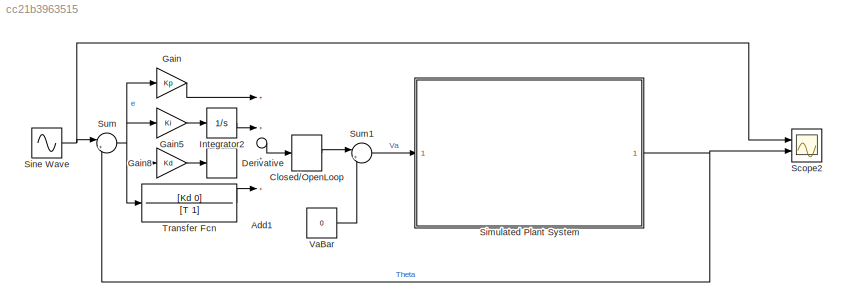
MODEL slx_cc21b3963515
KIND model
CONFIG AbsTol = auto
CONFIG EnableMultiTasking = off
CONFIG FixedStep = 1e-4
CONFIG MaxStep = auto
CONFIG MinStep = auto
CONFIG RelTol = 1e-3
CONFIG SampleTimeConstraint = Unconstrained
CONFIG Solver = ode4
CONFIG SolverName = ode4
CONFIG StartTime = 0.0
CONFIG StopTime = 10
BLOCK [Sum] Add1
  InputSameDT = off
  Inputs = ++++
  OutDataTypeStr = Inherit: Inherit via internal rule
  Ports = [4, 1]
  SaturateOnIntegerOverflow = off
BLOCK [ManualSwitch] Closed//OpenLoop
BLOCK [Derivative] Derivative
BLOCK [Gain] Gain
  Gain = Kp
  OutDataTypeStr = Inherit: Inherit via internal rule
  ParamDataTypeStr = Inherit: Inherit via internal rule
  SaturateOnIntegerOverflow = off
BLOCK [Gain] Gain5
  Gain = Ki
  OutDataTypeStr = Inherit: Inherit via internal rule
  ParamDataTypeStr = Inherit: Inherit via internal rule
  SaturateOnIntegerOverflow = off
BLOCK [Gain] Gain8
  Gain = Kd
  OutDataTypeStr = Inherit: Inherit via internal rule
  ParamDataTypeStr = Inherit: Inherit via internal rule
  SaturateOnIntegerOverflow = off
BLOCK [Integrator] Integrator2
  Ports = [1, 1]
BLOCK [Scope] Scope2
  Floating = off
  NumInputPorts = 2
  Ports = [2]
  ScopeSpecificationString = Simulink.scopes.TimeScopeBlockCfg('CurrentConfiguration', extmgr.ConfigurationSet(extmgr.Configuration('Core','General UI',true),extmgr.Configuration('Core','Source UI',true),extmgr.Configuration('Sources','WiredSimulink',true,'DataLoggingVariableName','ScopeData1'),extmgr.Configuration('Visuals','Time Domain',true,'SerializedDisplays',{struct('MinYLimReal','-50.34381','MaxYLimReal','2.15155','YLa...<+1380ch>
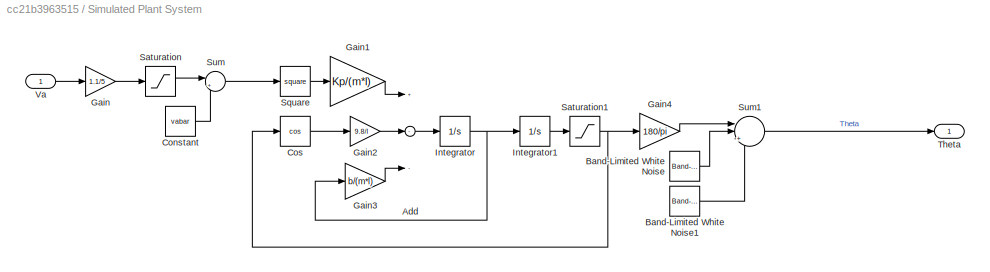
BLOCK [SubSystem] Simulated Plant System
  Ports = [1, 1]
  RequestExecContextInheritance = off
BLOCK [Sum] Simulated Plant System/Add
  InputSameDT = off
  Inputs = +--
  OutDataTypeStr = Inherit: Inherit via internal rule
  Ports = [3, 1]
  SaturateOnIntegerOverflow = off
BLOCK [Reference] Simulated Plant System/Band-Limited White Noise  REF=simulink/Sources/Band-Limited
White Noise
  Ports = [0, 1]
  SourceBlock = simulink/Sources/Band-Limited\nWhite Noise
  SourceProductBaseCode = SL
  SourceProductName = Simulink
  SourceType = Band-Limited White Noise.
BLOCK [Reference] Simulated Plant System/Band-Limited White Noise1  REF=simulink/Sources/Band-Limited
White Noise
  Ports = [0, 1]
  SourceBlock = simulink/Sources/Band-Limited\nWhite Noise
  SourceProductBaseCode = SL
  SourceProductName = Simulink
  SourceType = Band-Limited White Noise.
BLOCK [Constant] Simulated Plant System/Constant
  Value = vabar
BLOCK [Trigonometry] Simulated Plant System/Cos
  Operator = cos
  Ports = [1, 1]
BLOCK [Gain] Simulated Plant System/Gain
  Gain = 1.1/5
  OutDataTypeStr = Inherit: Inherit via internal rule
  ParamDataTypeStr = Inherit: Inherit via internal rule
  SaturateOnIntegerOverflow = off
BLOCK [Gain] Simulated Plant System/Gain1
  Gain = Kp/(m*l)
  OutDataTypeStr = Inherit: Inherit via internal rule
  ParamDataTypeStr = Inherit: Inherit via internal rule
  SaturateOnIntegerOverflow = off
BLOCK [Gain] Simulated Plant System/Gain2
  Gain = 9.8/l
  OutDataTypeStr = Inherit: Inherit via internal rule
  ParamDataTypeStr = Inherit: Inherit via internal rule
  SaturateOnIntegerOverflow = off
BLOCK [Gain] Simulated Plant System/Gain3
  Gain = b/(m*l)
  OutDataTypeStr = Inherit: Inherit via internal rule
  ParamDataTypeStr = Inherit: Inherit via internal rule
  SaturateOnIntegerOverflow = off
BLOCK [Gain] Simulated Plant System/Gain4
  Gain = 180/pi
  OutDataTypeStr = Inherit: Inherit via internal rule
  ParamDataTypeStr = Inherit: Inherit via internal rule
  SaturateOnIntegerOverflow = off
BLOCK [Integrator] Simulated Plant System/Integrator
  Ports = [1, 1]
BLOCK [Integrator] Simulated Plant System/Integrator1
  InitialCondition = deg2rad(-45)
  Ports = [1, 1]
BLOCK [Saturate] Simulated Plant System/Saturation
  InputPortMap = u0
  LowerLimit = 0
  Ports = [1, 1]
  UpperLimit = 3
BLOCK [Saturate] Simulated Plant System/Saturation1
  InputPortMap = u0
  LowerLimit = deg2rad(-45)
  Ports = [1, 1]
  UpperLimit = deg2rad(90)
BLOCK [Math] Simulated Plant System/Square
  Operator = square
  Ports = [1, 1]
BLOCK [Sum] Simulated Plant System/Sum
  IconShape = round
  InputSameDT = off
  Inputs = |++
  OutDataTypeStr = Inherit: Inherit via internal rule
  Ports = [2, 1]
  SaturateOnIntegerOverflow = off
BLOCK [Sum] Simulated Plant System/Sum1
  IconShape = round
  InputSameDT = off
  Inputs = ||+++
  OutDataTypeStr = Inherit: Inherit via internal rule
  Ports = [3, 1]
  SaturateOnIntegerOverflow = off
BLOCK [Outport] Simulated Plant System/Theta
  IconDisplay = Port number
BLOCK [Inport] Simulated Plant System/Va
  IconDisplay = Port number
BLOCK [Sin] Sine Wave
  Amplitude = 5
  Bias = -30
  Frequency = w
  Ports = [0, 1]
  SampleTime = 0
BLOCK [Sum] Sum
  IconShape = round
  InputSameDT = off
  Inputs = |+-
  OutDataTypeStr = Inherit: Inherit via internal rule
  Ports = [2, 1]
  SaturateOnIntegerOverflow = off
BLOCK [Sum] Sum1
  IconShape = round
  InputSameDT = off
  Inputs = |++
  OutDataTypeStr = Inherit: Inherit via internal rule
  Ports = [2, 1]
  SaturateOnIntegerOverflow = off
BLOCK [TransferFcn] Transfer Fcn
  Denominator = [T 1]
  Numerator = [Kd 0]
BLOCK [Constant] VaBar
  Value = 0
LINE Add1:1 -> Closed//OpenLoop:1
LINE Closed//OpenLoop:1 -> Sum1:1
LINE Gain5:1 -> Integrator2:1
LINE Gain8:1 -> Derivative:1
LINE Gain:1 -> Add1:1
LINE Integrator2:1 -> Add1:2
LINE Simulated Plant System/Add:1 -> Simulated Plant System/Integrator:1
LINE Simulated Plant System/Band-Limited White Noise1:1 -> Simulated Plant System/Sum1:3
LINE Simulated Plant System/Band-Limited White Noise:1 -> Simulated Plant System/Sum1:2
LINE Simulated Plant System/Constant:1 -> Simulated Plant System/Sum:2
LINE Simulated Plant System/Cos:1 -> Simulated Plant System/Gain2:1
LINE Simulated Plant System/Gain1:1 -> Simulated Plant System/Add:1
LINE Simulated Plant System/Gain2:1 -> Simulated Plant System/Add:2
LINE Simulated Plant System/Gain3:1 -> Simulated Plant System/Add:3
LINE Simulated Plant System/Gain4:1 -> Simulated Plant System/Sum1:1
LINE Simulated Plant System/Gain:1 -> Simulated Plant System/Saturation:1
LINE Simulated Plant System/Integrator1:1 -> Simulated Plant System/Saturation1:1
NET Simulated Plant System/Integrator:1 -> Simulated Plant System/Gain3:1, Simulated Plant System/Integrator1:1
NET Simulated Plant System/Saturation1:1 -> Simulated Plant System/Cos:1, Simulated Plant System/Gain4:1
LINE Simulated Plant System/Saturation:1 -> Simulated Plant System/Sum:1
LINE Simulated Plant System/Square:1 -> Simulated Plant System/Gain1:1
LINE Simulated Plant System/Sum1:1 -> Simulated Plant System/Theta:1
LINE Simulated Plant System/Sum:1 -> Simulated Plant System/Square:1
LINE Simulated Plant System/Va:1 -> Simulated Plant System/Gain:1
NET Simulated Plant System:1 -> Scope2:2, Sum:2
NET Sine Wave:1 -> Scope2:1, Sum:1
LINE Sum1:1 -> Simulated Plant System:1
NET Sum:1 -> Gain5:1, Gain8:1, Gain:1, Transfer Fcn:1
LINE Transfer Fcn:1 -> Add1:4
LINE VaBar:1 -> Sum1:2
note: NET lines group one-source signal fan-out (src -> all destinations, sorted); 1:1 wires keep LINE
